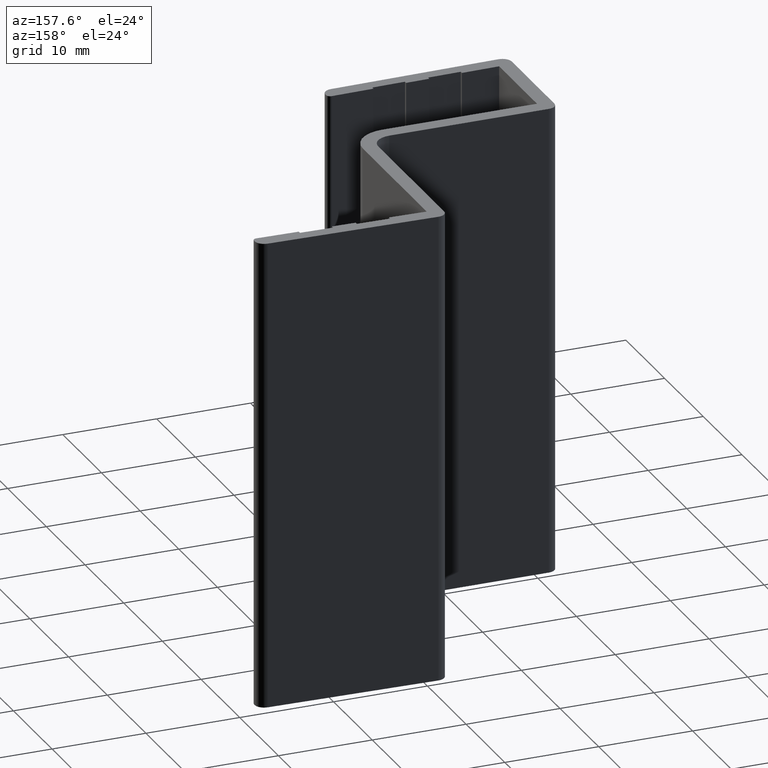
[diagram: clean part render]
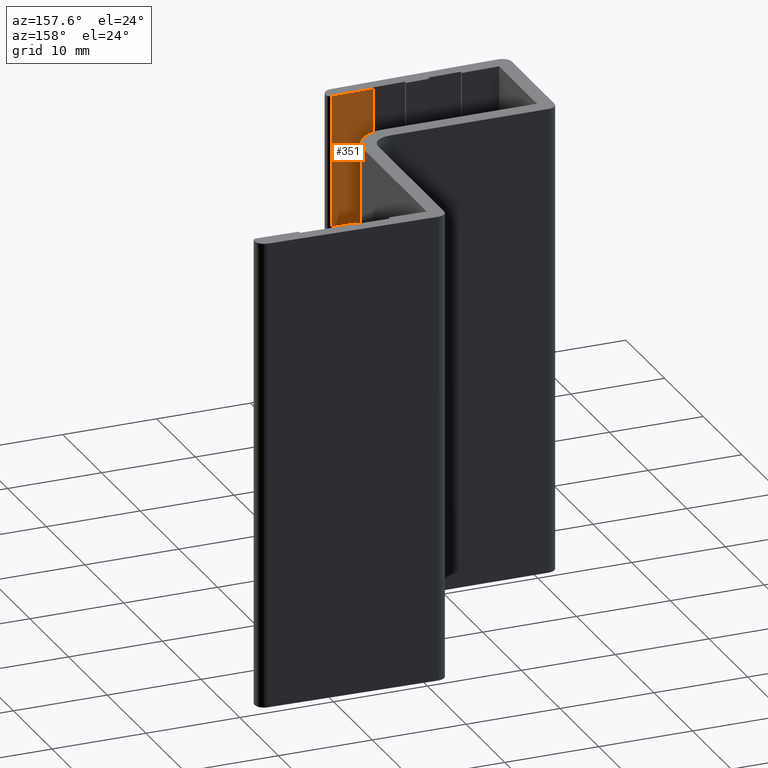
[diagram: same view with one face highlighted and labeled with its STEP entity id]
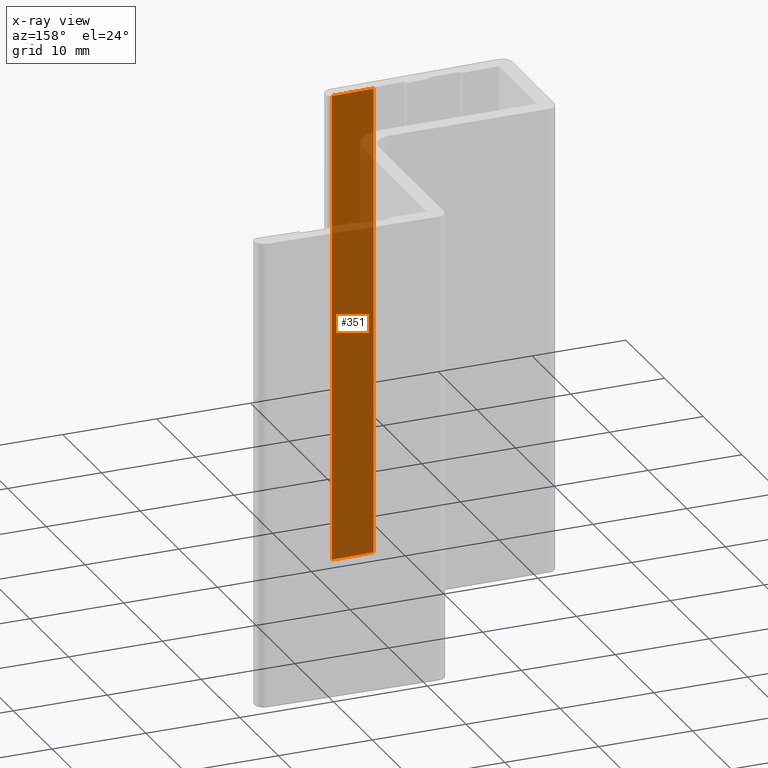
[diagram: x-ray of the same camera — body ghosted, the highlighted face saturated]
A machine part, auxiliary view. The second image highlights one B-rep face of the part: STEP entity #351.
The next image is the same camera in x-ray: the body ghosted, the highlighted face saturated — about 78% of this face is hidden behind the body in this view.
In plain terms, the highlighted planar face has unit normal (0.0217, -0.9998, 0).
Its self-contained STEP definition (entity closure, byte-faithful):
#13 = VECTOR ( 'NONE', #553, 1000.000000000000000 ) ;
#36 = DIRECTION ( 'NONE',  ( 0.0000000000000000000, 0.0000000000000000000, -1.000000000000000000 ) ) ;
#38 = AXIS2_PLACEMENT_3D ( 'NONE', #1298, #1336, #1263 ) ;
#151 = CARTESIAN_POINT ( 'NONE',  ( 18.00009448447043800, 0.3913064018363138800, 50.00000000000000000 ) ) ;
#184 = CARTESIAN_POINT ( 'NONE',  ( 13.49858273294349900, 0.2934474507161632400, 0.0000000000000000000 ) ) ;
#208 = VECTOR ( 'NONE', #36, 1000.000000000000000 ) ;
#219 = CARTESIAN_POINT ( 'NONE',  ( 18.00009448447043400, 0.3913064018363138800, 0.0000000000000000000 ) ) ;
#220 = DIRECTION ( 'NONE',  ( -0.0000000000000000000, -0.0000000000000000000, 1.000000000000000000 ) ) ;
#273 = CARTESIAN_POINT ( 'NONE',  ( 0.0000000000000000000, 0.0000000000000000000, 0.0000000000000000000 ) ) ;
#277 = CARTESIAN_POINT ( 'NONE',  ( 0.0000000000000000000, 0.0000000000000000000, 50.00000000000000000 ) ) ;
#280 = LINE ( 'NONE', #273, #13 ) ;
#283 = DIRECTION ( 'NONE',  ( -0.9997637888239162600, -0.02173399540921557400, -0.0000000000000000000 ) ) ;
#351 = ADVANCED_FACE ( 'NONE', ( #1120 ), #1319, .F. ) ;
#466 = VERTEX_POINT ( 'NONE', #698 ) ;
#540 = VECTOR ( 'NONE', #220, 1000.000000000000000 ) ;
#551 = EDGE_CURVE ( 'NONE', #466, #1105, #905, .T. ) ;
#553 = DIRECTION ( 'NONE',  ( -0.9997637888239162600, -0.02173399540921557400, -0.0000000000000000000 ) ) ;
#583 = EDGE_CURVE ( 'NONE', #724, #1105, #1147, .T. ) ;
#584 = ORIENTED_EDGE ( 'NONE', *, *, #864, .T. ) ;
#611 = VECTOR ( 'NONE', #283, 1000.000000000000000 ) ;
#615 = VERTEX_POINT ( 'NONE', #219 ) ;
#641 = EDGE_CURVE ( 'NONE', #466, #615, #1309, .T. ) ;
#698 = CARTESIAN_POINT ( 'NONE',  ( 18.00009448447043400, 0.3913064018363138800, 50.00000000000000000 ) ) ;
#724 = VERTEX_POINT ( 'NONE', #1318 ) ;
#793 = ORIENTED_EDGE ( 'NONE', *, *, #641, .T. ) ;
#864 = EDGE_CURVE ( 'NONE', #615, #724, #280, .T. ) ;
#905 = LINE ( 'NONE', #277, #611 ) ;
#914 = EDGE_LOOP ( 'NONE', ( #584, #1124, #1191, #793 ) ) ;
#1078 = CARTESIAN_POINT ( 'NONE',  ( 13.49858273294349900, 0.2934474507161632400, 50.00000000000000000 ) ) ;
#1105 = VERTEX_POINT ( 'NONE', #1078 ) ;
#1120 = FACE_OUTER_BOUND ( 'NONE', #914, .T. ) ;
#1124 = ORIENTED_EDGE ( 'NONE', *, *, #583, .T. ) ;
#1147 = LINE ( 'NONE', #184, #540 ) ;
#1191 = ORIENTED_EDGE ( 'NONE', *, *, #551, .F. ) ;
#1263 = DIRECTION ( 'NONE',  ( 0.9997637888239162600, 0.02173399540921557000, 0.0000000000000000000 ) ) ;
#1298 = CARTESIAN_POINT ( 'NONE',  ( 0.0000000000000000000, 0.0000000000000000000, 50.00000000000000000 ) ) ;
#1309 = LINE ( 'NONE', #151, #208 ) ;
#1318 = CARTESIAN_POINT ( 'NONE',  ( 13.49858273294349900, 0.2934474507161632400, 0.0000000000000000000 ) ) ;
#1319 = PLANE ( 'NONE',  #38 ) ;
#1336 = DIRECTION ( 'NONE',  ( 0.02173399540921557000, -0.9997637888239162600, 0.0000000000000000000 ) ) ;